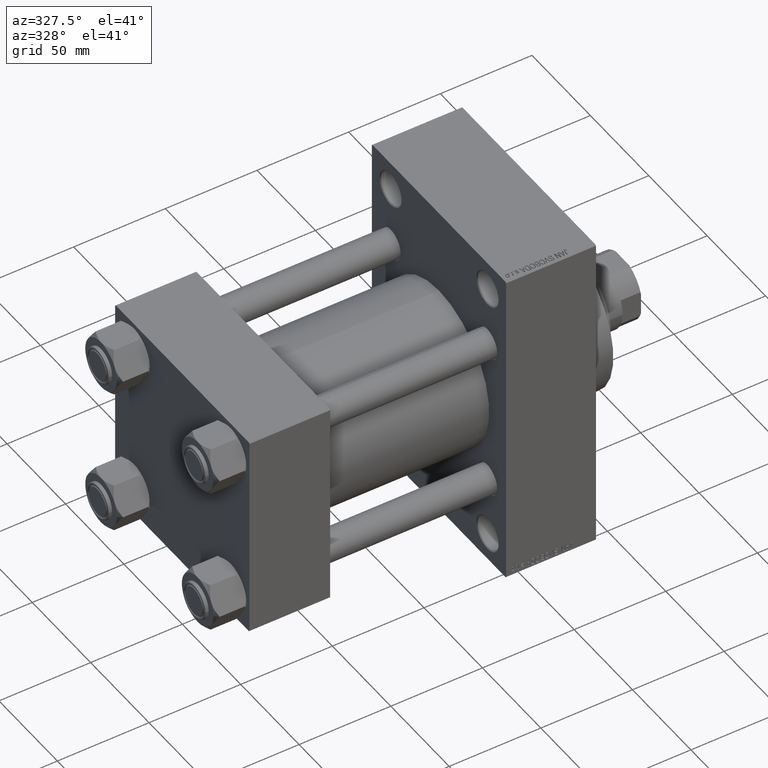
[diagram: clean part render]
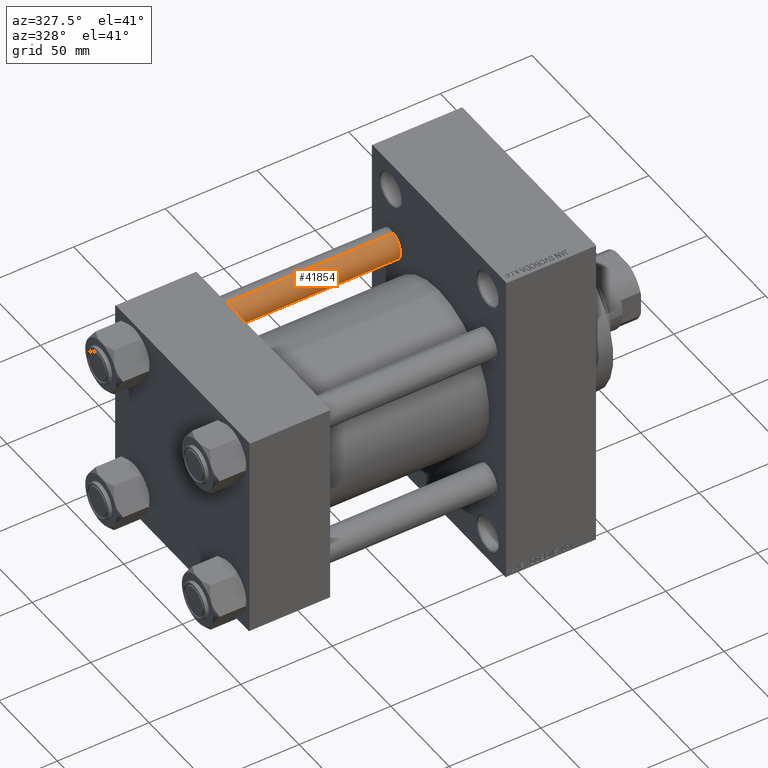
[diagram: same view with one face highlighted and labeled with its STEP entity id]
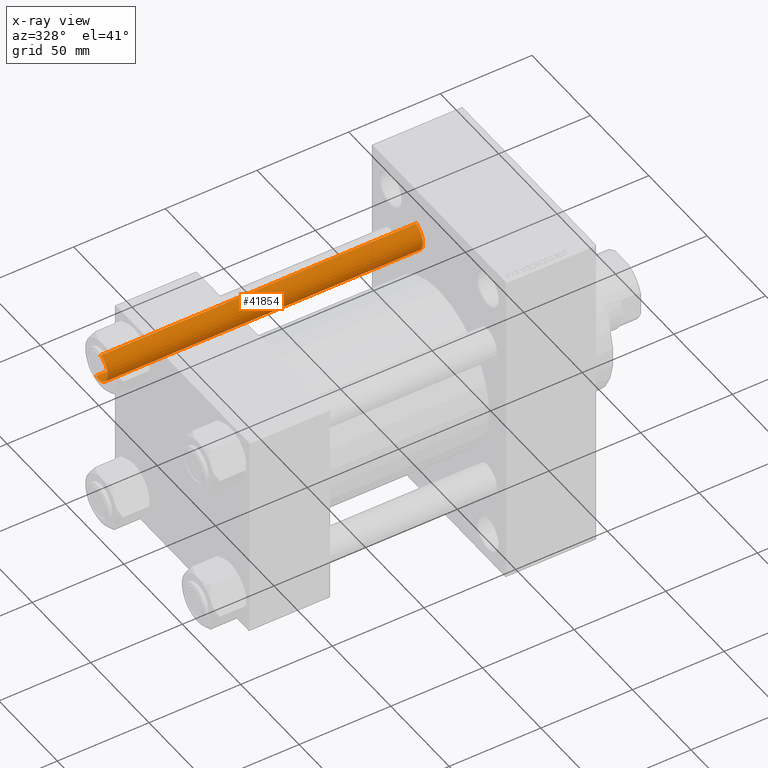
[diagram: x-ray of the same camera — body ghosted, the highlighted face saturated]
A machine part, auxiliary view. The second image highlights one B-rep face of the part: STEP entity #41854.
The next image is the same camera in x-ray: the body ghosted, the highlighted face saturated — about 0% of this face is hidden behind the body in this view.
In plain terms, the highlighted cylindrical surface (edge-blend (fillet) strip) has radius 8 mm, axis along (-1, -0, 0).
Its self-contained STEP definition (entity closure, byte-faithful):
#372 = CARTESIAN_POINT ( 'NONE',  ( -8.000000000000000000, 0.000000000000000000, 173.0000000000000000 ) ) ;
#822 = LINE ( 'NONE', #3492, #13426 ) ;
#3492 = CARTESIAN_POINT ( 'NONE',  ( 8.000000000000000000, 9.797174393178825657E-16, 173.0000000000000000 ) ) ;
#4243 = DIRECTION ( 'NONE',  ( -0.000000000000000000, -0.000000000000000000, -1.000000000000000000 ) ) ;
#4541 = EDGE_CURVE ( 'NONE', #46110, #24273, #18668, .T. ) ;
#6936 = CARTESIAN_POINT ( 'NONE',  ( 8.000000000000000000, 9.797174393178825657E-16, 172.5000000000000000 ) ) ;
#8546 = FACE_OUTER_BOUND ( 'NONE', #22313, .T. ) ;
#9149 = VERTEX_POINT ( 'NONE', #6936 ) ;
#9542 = AXIS2_PLACEMENT_3D ( 'NONE', #32465, #43808, #18474 ) ;
#10300 = CARTESIAN_POINT ( 'NONE',  ( 8.000000000000000000, 9.797174393178825657E-16, 0.4999999999999449329 ) ) ;
#10649 = CARTESIAN_POINT ( 'NONE',  ( -8.000000000000000000, 0.000000000000000000, 172.5000000000000000 ) ) ;
#13426 = VECTOR ( 'NONE', #29755, 1000.000000000000000 ) ;
#18168 = EDGE_CURVE ( 'NONE', #24273, #47193, #19978, .T. ) ;
#18474 = DIRECTION ( 'NONE',  ( 1.000000000000000000, 0.000000000000000000, 0.000000000000000000 ) ) ;
#18668 = LINE ( 'NONE', #372, #43621 ) ;
#19978 = CIRCLE ( 'NONE', #20761, 8.000000000000000000 ) ;
#20096 = AXIS2_PLACEMENT_3D ( 'NONE', #22770, #4243, #23229 ) ;
#20761 = AXIS2_PLACEMENT_3D ( 'NONE', #34106, #27320, #42057 ) ;
#22313 = EDGE_LOOP ( 'NONE', ( #42723, #37909, #30786, #38105 ) ) ;
#22610 = CIRCLE ( 'NONE', #9542, 8.000000000000000000 ) ;
#22770 = CARTESIAN_POINT ( 'NONE',  ( 0.000000000000000000, 0.000000000000000000, 173.0000000000000000 ) ) ;
#23229 = DIRECTION ( 'NONE',  ( -1.000000000000000000, 0.000000000000000000, 0.000000000000000000 ) ) ;
#24273 = VERTEX_POINT ( 'NONE', #46772 ) ;
#27320 = DIRECTION ( 'NONE',  ( -0.000000000000000000, -0.000000000000000000, 1.000000000000000000 ) ) ;
#29755 = DIRECTION ( 'NONE',  ( -0.000000000000000000, -0.000000000000000000, -1.000000000000000000 ) ) ;
#29799 = CYLINDRICAL_SURFACE ( 'NONE', #20096, 8.000000000000000000 ) ;
#30786 = ORIENTED_EDGE ( 'NONE', *, *, #4541, .T. ) ;
#32174 = EDGE_CURVE ( 'NONE', #9149, #46110, #22610, .T. ) ;
#32465 = CARTESIAN_POINT ( 'NONE',  ( 0.000000000000000000, 0.000000000000000000, 172.5000000000000000 ) ) ;
#33801 = EDGE_CURVE ( 'NONE', #9149, #47193, #822, .T. ) ;
#34106 = CARTESIAN_POINT ( 'NONE',  ( 0.000000000000000000, 0.000000000000000000, 0.4999999999999449329 ) ) ;
#37909 = ORIENTED_EDGE ( 'NONE', *, *, #32174, .T. ) ;
#38105 = ORIENTED_EDGE ( 'NONE', *, *, #18168, .T. ) ;
#40865 = DIRECTION ( 'NONE',  ( -0.000000000000000000, -0.000000000000000000, -1.000000000000000000 ) ) ;
#41854 = ADVANCED_FACE ( 'NONE', ( #8546 ), #29799, .T. ) ;
#42057 = DIRECTION ( 'NONE',  ( 1.000000000000000000, 0.000000000000000000, 0.000000000000000000 ) ) ;
#42723 = ORIENTED_EDGE ( 'NONE', *, *, #33801, .F. ) ;
#43621 = VECTOR ( 'NONE', #40865, 1000.000000000000000 ) ;
#43808 = DIRECTION ( 'NONE',  ( 0.000000000000000000, 0.000000000000000000, -1.000000000000000000 ) ) ;
#46110 = VERTEX_POINT ( 'NONE', #10649 ) ;
#46772 = CARTESIAN_POINT ( 'NONE',  ( -8.000000000000000000, 0.000000000000000000, 0.4999999999999449329 ) ) ;
#47193 = VERTEX_POINT ( 'NONE', #10300 ) ;